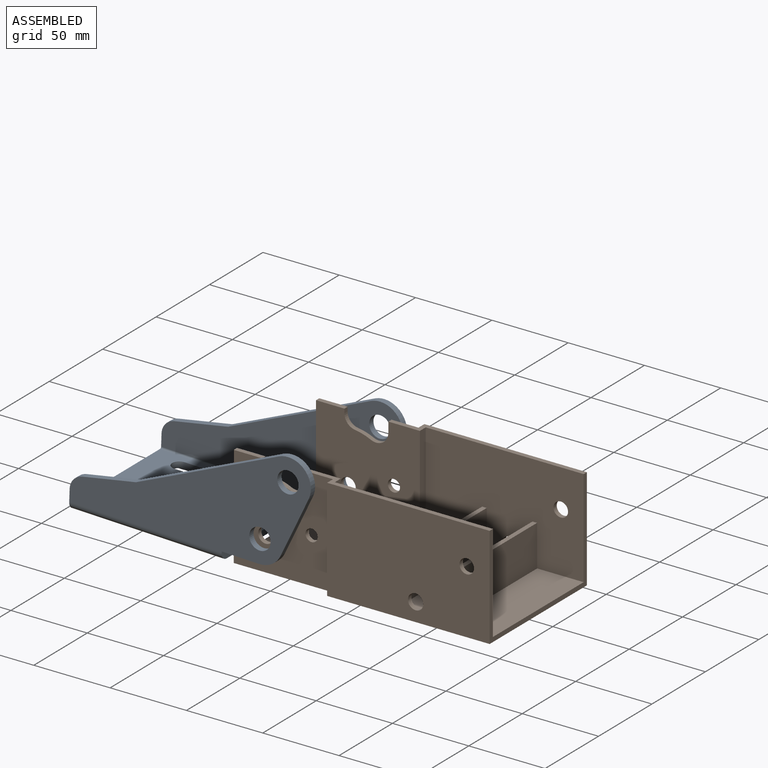
[diagram: assembled view]
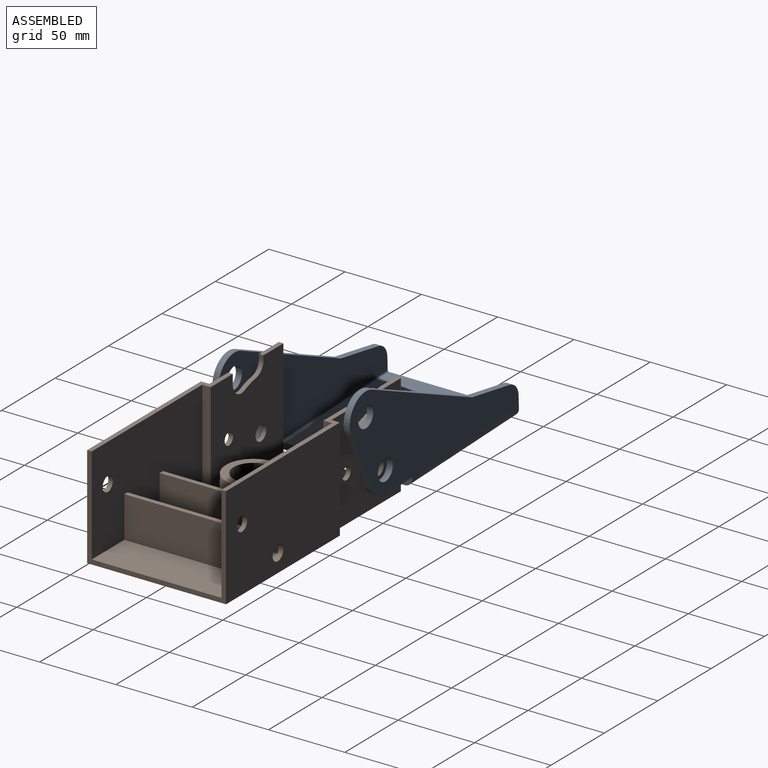
[diagram: assembled view, second angle]
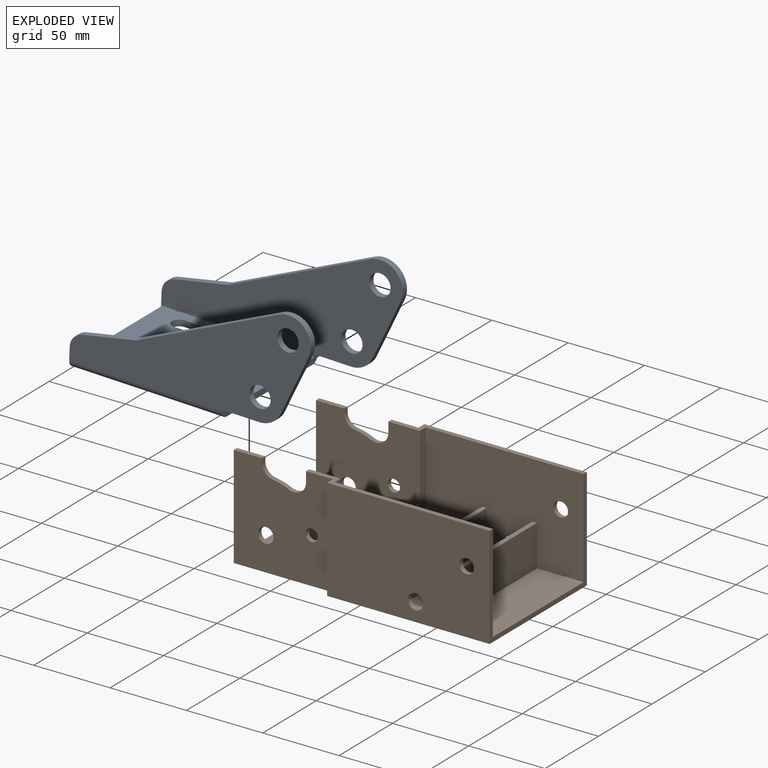
[diagram: exploded view]
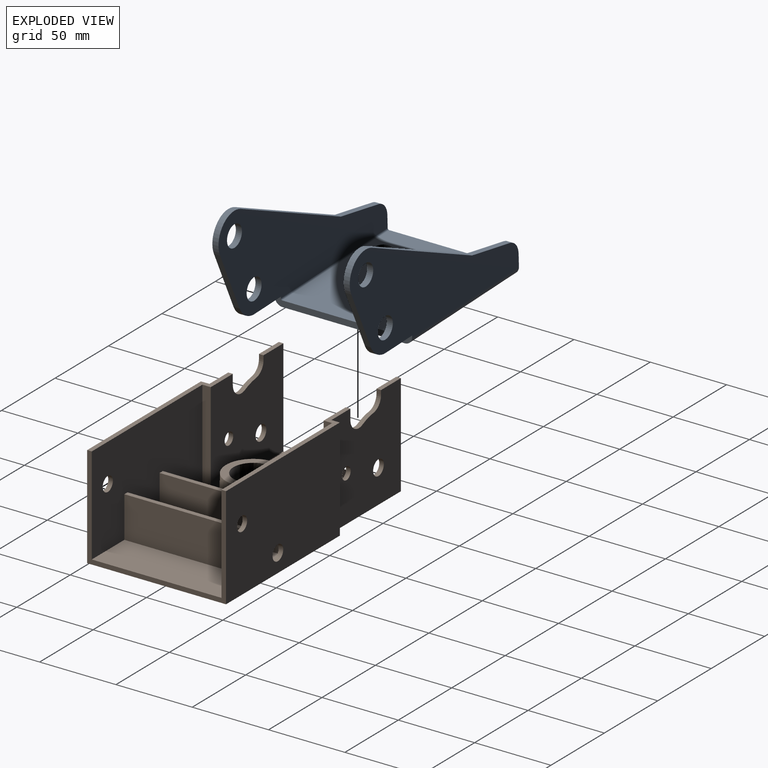
[diagram: exploded view, second angle]
ASSEMBLY  parts=2 mates=2
PART A: 42 faces, bbox 156.5x90x75 mm
  f0: plane 100x80mm, normal (0,0,-1), area 7414.4mm2, adj f10,f11,f24,f25,f30,f31,f32,f33
  f1: plane 100x80mm, normal (0,0,1), area 7414.4mm2, adj f10,f11,f28,f29,f30,f31,f32,f33
  f2: cylinder r=7mm len=14mm, axis (0,1,0), area 175.9mm2, adj f23,f27
  f3: cylinder r=7mm len=14mm, axis (0,1,0), area 175.9mm2, adj f23,f27
  f4: plane 35.05x7.34mm, normal (-0.2,0,0.98), area 143.2mm2, adj f5,f13,f23,f27
  f5: plane 92.09x43.56mm, normal (-0.43,0,0.9), area 407.5mm2, adj f4,f6,f23,f27
  f6: cylinder r=15mm len=21.41mm, axis (0,1,0), area 145.4mm2, adj f5,f7,f23,f27
  f7: plane 39x17mm, normal (0.92,0,-0.4), area 170.2mm2, adj f6,f8,f23,f27
  f8: cylinder r=15mm len=13.75mm, axis (0,1,0), area 69.6mm2, adj f7,f9,f23,f27
  f9: plane 24.5x4mm, normal (0,0,-1), area 98mm2, adj f8,f10,f23,f27
  f10: plane 90x6mm, normal (1,0,0), area 365.7mm2, adj f0,f1,f9,f14,f22,f23,f24,f25
  f11: plane 90x12.88mm, normal (-1,0,0), area 420.7mm2, adj f0,f1,f12,f13,f22,f23,f24,f25
  f12: cylinder r=10mm len=9.79mm, axis (0,1,0), area 54.6mm2, adj f11,f20,f22,f26
  f13: cylinder r=10mm len=9.79mm, axis (0,1,0), area 54.6mm2, adj f4,f11,f23,f27
  f14: plane 24.5x4mm, normal (0,0,-1), area 98mm2, adj f10,f15,f22,f26
  f15: cylinder r=15mm len=13.75mm, axis (0,1,0), area 69.6mm2, adj f14,f16,f22,f26
  f16: plane 39x17mm, normal (0.92,0,-0.4), area 170.2mm2, adj f15,f17,f22,f26
  f17: cylinder r=15mm len=21.41mm, axis (0,1,0), area 145.4mm2, adj f16,f18,f22,f26
  f18: plane 92.09x43.56mm, normal (-0.43,0,0.9), area 407.5mm2, adj f17,f20,f22,f26
  f19: cylinder r=7mm len=14mm, axis (0,1,0), area 175.9mm2, adj f22,f26
  f20: plane 35.05x7.34mm, normal (-0.2,0,0.98), area 143.2mm2, adj f12,f18,f22,f26
  f21: cylinder r=7mm len=14mm, axis (0,1,0), area 175.9mm2, adj f22,f26
  f22: plane 156.5x70mm, normal (0,-1,0), area 5677.9mm2, adj f10,f11,f12,f14,f15,f16,f17,f18
  f23: plane 156.5x70mm, normal (0,1,0), area 5677.9mm2, adj f2,f3,f4,f5,f6,f7,f8,f9
  f24: cylinder r=5mm len=100mm, axis (1,0,0), area 785.4mm2, adj f0,f10,f11,f23
  f25: cylinder r=5mm len=100mm, axis (-1,0,0), area 785.4mm2, adj f0,f10,f11,f22
  f26: plane 156.5x70mm, normal (0,1,0), area 5677.9mm2, adj f10,f11,f12,f14,f15,f16,f17,f18
  f27: plane 156.5x70mm, normal (0,-1,0), area 5677.9mm2, adj f2,f3,f4,f5,f6,f7,f8,f9
  f28: cylinder r=1mm len=100mm, axis (1,0,0), area 157.1mm2, adj f1,f10,f11,f27
  f29: cylinder r=1mm len=100mm, axis (-1,0,0), area 157.1mm2, adj f1,f10,f11,f26
  f30: cylinder r=5mm len=10mm, axis (0,0,1), area 62.8mm2, adj f0,f1,f31,f33
  f31: plane 10x4mm, normal (0,1,0), area 40mm2, adj f0,f1,f30,f32
  f32: cylinder r=5mm len=10mm, axis (0,0,1), area 62.8mm2, adj f0,f1,f31,f33
  f33: plane 10x4mm, normal (0,-1,0), area 40mm2, adj f0,f1,f30,f32
  f34: plane 15x4mm, normal (0,-1,0), area 60mm2, adj f0,f1,f35,f37
  f35: cylinder r=5mm len=10mm, axis (0,0,1), area 62.8mm2, adj f0,f1,f34,f36
  f36: plane 15x4mm, normal (0,1,0), area 60mm2, adj f0,f1,f35,f37
  f37: cylinder r=5mm len=10mm, axis (0,0,1), area 62.8mm2, adj f0,f1,f34,f36
  f38: cylinder r=5mm len=10mm, axis (0,0,1), area 62.8mm2, adj f0,f1,f39,f41
  f39: plane 10x4mm, normal (0,1,0), area 40mm2, adj f0,f1,f38,f40
  f40: cylinder r=5mm len=10mm, axis (0,0,1), area 62.8mm2, adj f0,f1,f39,f41
  f41: plane 10x4mm, normal (0,-1,0), area 40mm2, adj f0,f1,f38,f40
PART B: 53 faces, bbox 171.5x91x67 mm
  f0: plane 85x30mm, normal (0,0,1), area 2550mm2, adj f1,f2,f49,f51
  f1: plane 103.5x64mm, normal (0,-1,0), area 6312.6mm2, adj f0,f3,f4,f5,f9,f21,f36,f37
  f2: plane 103.5x64mm, normal (0,1,0), area 6312.6mm2, adj f0,f3,f9,f20,f27,f28,f36,f38
  f3: plane 85x30.5mm, normal (0,0,1), area 2592.5mm2, adj f1,f2,f9,f52
  f4: cylinder r=4.75mm len=9.5mm, axis (0,1,0), area 89.5mm2, adj f1,f26
  f5: cylinder r=5mm len=10mm, axis (0,1,0), area 94.2mm2, adj f1,f26
  f6: cylinder r=5mm len=10mm, axis (0,1,0), area 94.2mm2, adj f32,f39
  f7: cylinder r=4mm len=8mm, axis (0,1,0), area 75.4mm2, adj f32,f39
  f8: plane 18.59x3mm, normal (0,0,1), area 55.8mm2, adj f16,f24,f32,f39
  f9: plane 91x67mm, normal (1,0,0), area 657mm2, adj f1,f2,f3,f20,f21,f25,f26,f29
  f10: cylinder r=8mm len=11.45mm, axis (0,-1,0), area 48.4mm2, adj f13,f18,f22,f35
  f11: cylinder r=8mm len=11.45mm, axis (0,-1,0), area 48.4mm2, adj f12,f19,f32,f39
  f12: cylinder r=34.54mm len=10.36mm, axis (0,-1,0), area 32.6mm2, adj f11,f15,f32,f39
  f13: cylinder r=34.54mm len=10.36mm, axis (0,-1,0), area 32.6mm2, adj f10,f14,f22,f35
  f14: cylinder r=8mm len=7.93mm, axis (0,-1,0), area 34.5mm2, adj f13,f17,f22,f35
  f15: cylinder r=8mm len=7.93mm, axis (0,-1,0), area 34.5mm2, adj f12,f16,f32,f39
  f16: plane 3x2.83mm, normal (1,0,0), area 8.5mm2, adj f8,f15,f32,f39
  f17: plane 3x2.83mm, normal (1,0,0), area 8.5mm2, adj f14,f22,f23,f35
  f18: plane 6.62x3mm, normal (-1,0,0), area 19.9mm2, adj f10,f21,f22,f35
  f19: plane 6.62x3mm, normal (-1,0,0), area 19.9mm2, adj f11,f20,f32,f39
  f20: plane 124.15x8.5mm, normal (0,0,1), area 388.9mm2, adj f2,f9,f19,f29,f31,f32,f38,f39
  f21: plane 124.15x8.5mm, normal (0,0,1), area 388.9mm2, adj f1,f9,f18,f22,f26,f30,f35,f37
  f22: plane 67x65mm, normal (0,1,0), area 3887.6mm2, adj f10,f13,f14,f17,f18,f21,f23,f24
  f23: plane 18.59x3mm, normal (0,0,1), area 55.8mm2, adj f17,f22,f24,f35
  f24: plane 80x67mm, normal (-1,0,0), area 624mm2, adj f8,f22,f23,f25,f32,f35,f36,f39
  f25: plane 171.5x91mm, normal (0,0,-1), area 13929.4mm2, adj f9,f22,f24,f26,f29,f30,f31,f32
  f26: plane 106.5x67mm, normal (0,1,0), area 6986.1mm2, adj f4,f5,f9,f21,f25,f30
  f27: cylinder r=5mm len=10mm, axis (0,1,0), area 94.2mm2, adj f2,f29
  f28: cylinder r=4.75mm len=9.5mm, axis (0,1,0), area 89.5mm2, adj f2,f29
  f29: plane 106.5x67mm, normal (0,-1,0), area 6986.1mm2, adj f9,f20,f25,f27,f28,f31
  f30: plane 67x5.5mm, normal (-1,0,0), area 368.5mm2, adj f21,f22,f25,f26
  f31: plane 67x5.5mm, normal (-1,0,0), area 368.5mm2, adj f20,f25,f29,f32
  f32: plane 67x65mm, normal (0,-1,0), area 3887.6mm2, adj f6,f7,f8,f11,f12,f15,f16,f19
  f33: cylinder r=4mm len=8mm, axis (0,1,0), area 75.4mm2, adj f22,f35
  f34: cylinder r=5mm len=10mm, axis (0,1,0), area 94.2mm2, adj f22,f35
  f35: plane 68x64mm, normal (0,-1,0), area 3884.6mm2, adj f10,f13,f14,f17,f18,f21,f23,f24
  f36: plane 105x85mm, normal (0,0,1), area 6856.7mm2, adj f1,f2,f24,f35,f37,f38,f39,f40
  f37: plane 64x5.5mm, normal (1,0,0), area 352mm2, adj f1,f21,f35,f36
  f38: plane 64x5.5mm, normal (1,0,0), area 352mm2, adj f2,f20,f36,f39
  f39: plane 68x64mm, normal (0,1,0), area 3884.6mm2, adj f6,f7,f8,f11,f12,f15,f16,f19
  f40: cylinder r=20.5mm len=41mm, axis (0,0,1), area 257.6mm2, adj f36,f41
  f41: plane 41x41mm, normal (0,0,1), area 236.4mm2, adj f40,f42
  f42: cone r=18mm half-angle=1.3deg, axis (0,0,-1), area 2988.2mm2, adj f41,f43
  f43: plane 36x36mm, normal (0,0,1), area 487.1mm2, adj f42,f46
  f44: cylinder r=17.5mm len=35mm, axis (0,0,-1), area 219.9mm2, adj f25,f45
  f45: plane 35x35mm, normal (0,0,-1), area 377.7mm2, adj f44,f46
  f46: cone r=13mm half-angle=1.3deg, axis (0,0,-1), area 2427.5mm2, adj f43,f45
  f47: plane 85x3mm, normal (0,0,1), area 255mm2, adj f1,f2,f48,f49
  f48: plane 85x27mm, normal (-1,0,0), area 2295mm2, adj f1,f2,f36,f47
  f49: plane 85x27mm, normal (1,0,0), area 2295mm2, adj f0,f1,f2,f47
  f50: plane 85x3mm, normal (0,0,1), area 255mm2, adj f1,f2,f51,f52
  f51: plane 85x27mm, normal (-1,0,0), area 2295mm2, adj f0,f1,f2,f50
  f52: plane 85x27mm, normal (1,0,0), area 2295mm2, adj f1,f2,f3,f50
PLACE A rot(axis=(0,1,0),2deg) t=(-41.65,-0.5,60.38)mm
PLACE B at identity fixed
MATE planar A.f22 <-> B.f29  axis (0,-1,0) through (-94.19,-45.5,32.72)mm
MATE cylindrical A.f2 <-> B.f6  axis (0,1,0) through (-60,-41.5,22)mm
